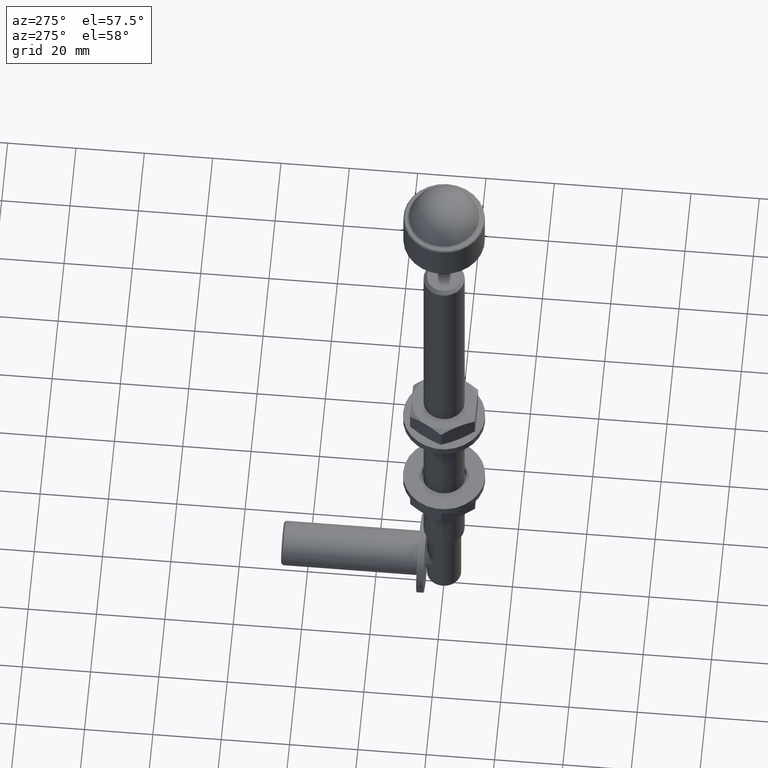
[diagram: clean part render]
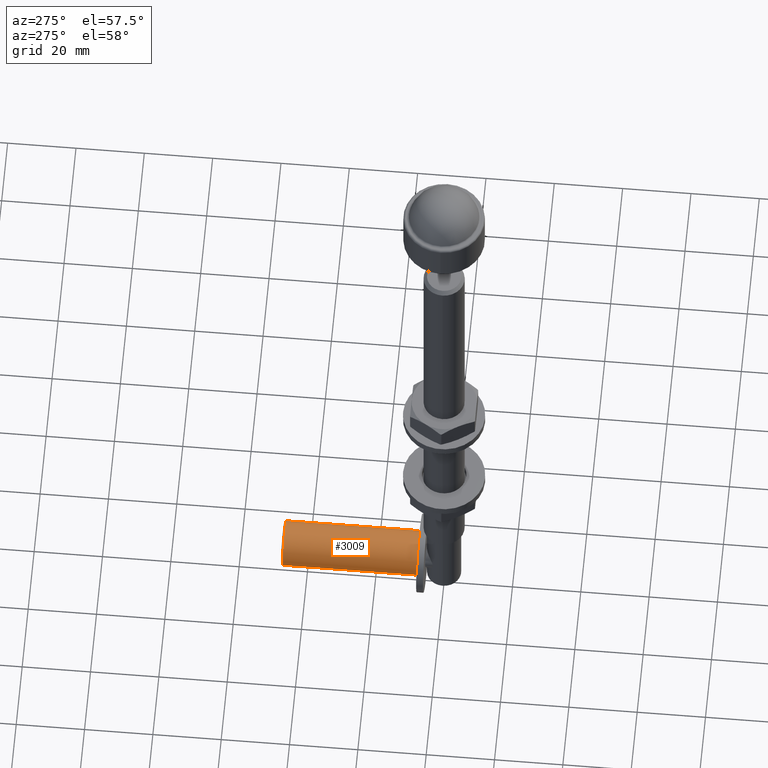
[diagram: same view with one face highlighted and labeled with its STEP entity id]
A machine part, auxiliary view. The second image highlights one B-rep face of the part: STEP entity #3009.
In plain terms, the highlighted cylindrical surface (bore or boss wall) has radius 6.5 mm, axis along (-0, -1, -0).
Its self-contained STEP definition (entity closure, byte-faithful):
#759 = DIRECTION ( 'NONE',  ( 0.000000000000000000, 0.000000000000000000, -1.000000000000000000 ) ) ;
#1094 = AXIS2_PLACEMENT_3D ( 'NONE', #8854, #10149, #2546 ) ;
#1465 = EDGE_LOOP ( 'NONE', ( #4513 ) ) ;
#1638 = CARTESIAN_POINT ( 'NONE',  ( 0.000000000000000000, 46.69999999999997442, -64.49999999999998579 ) ) ;
#1902 = CARTESIAN_POINT ( 'NONE',  ( 0.000000000000000000, 7.199999999999976197, -77.50000000000004263 ) ) ;
#2369 = DIRECTION ( 'NONE',  ( 0.000000000000000000, 0.000000000000000000, -1.000000000000000000 ) ) ;
#2494 = ORIENTED_EDGE ( 'NONE', *, *, #2551, .T. ) ;
#2516 = CYLINDRICAL_SURFACE ( 'NONE', #11284, 6.500000000000019540 ) ;
#2546 = DIRECTION ( 'NONE',  ( 0.000000000000000000, 0.000000000000000000, 1.000000000000000000 ) ) ;
#2551 = EDGE_CURVE ( 'NONE', #10707, #10707, #5227, .T. ) ;
#3009 = ADVANCED_FACE ( 'NONE', ( #3475, #12900 ), #2516, .T. ) ;
#3475 = FACE_OUTER_BOUND ( 'NONE', #5425, .T. ) ;
#4513 = ORIENTED_EDGE ( 'NONE', *, *, #7794, .F. ) ;
#4917 = DIRECTION ( 'NONE',  ( -0.000000000000000000, -1.000000000000000000, -0.000000000000000000 ) ) ;
#5227 = CIRCLE ( 'NONE', #1094, 6.500000000000019540 ) ;
#5425 = EDGE_LOOP ( 'NONE', ( #2494 ) ) ;
#6891 = CIRCLE ( 'NONE', #8967, 6.500000000000033751 ) ;
#7421 = VERTEX_POINT ( 'NONE', #1902 ) ;
#7794 = EDGE_CURVE ( 'NONE', #7421, #7421, #6891, .T. ) ;
#8854 = CARTESIAN_POINT ( 'NONE',  ( 0.000000000000000000, 46.69999999999997442, -71.00000000000001421 ) ) ;
#8967 = AXIS2_PLACEMENT_3D ( 'NONE', #13352, #4917, #2369 ) ;
#10149 = DIRECTION ( 'NONE',  ( -0.000000000000000000, -1.000000000000000000, -0.000000000000000000 ) ) ;
#10600 = DIRECTION ( 'NONE',  ( -0.000000000000000000, -1.000000000000000000, -0.000000000000000000 ) ) ;
#10707 = VERTEX_POINT ( 'NONE', #1638 ) ;
#11284 = AXIS2_PLACEMENT_3D ( 'NONE', #11399, #10600, #759 ) ;
#11399 = CARTESIAN_POINT ( 'NONE',  ( 0.000000000000000000, 0.000000000000000000, -71.00000000000001421 ) ) ;
#12900 = FACE_OUTER_BOUND ( 'NONE', #1465, .T. ) ;
#13352 = CARTESIAN_POINT ( 'NONE',  ( 0.000000000000000000, 7.199999999999976197, -71.00000000000001421 ) ) ;